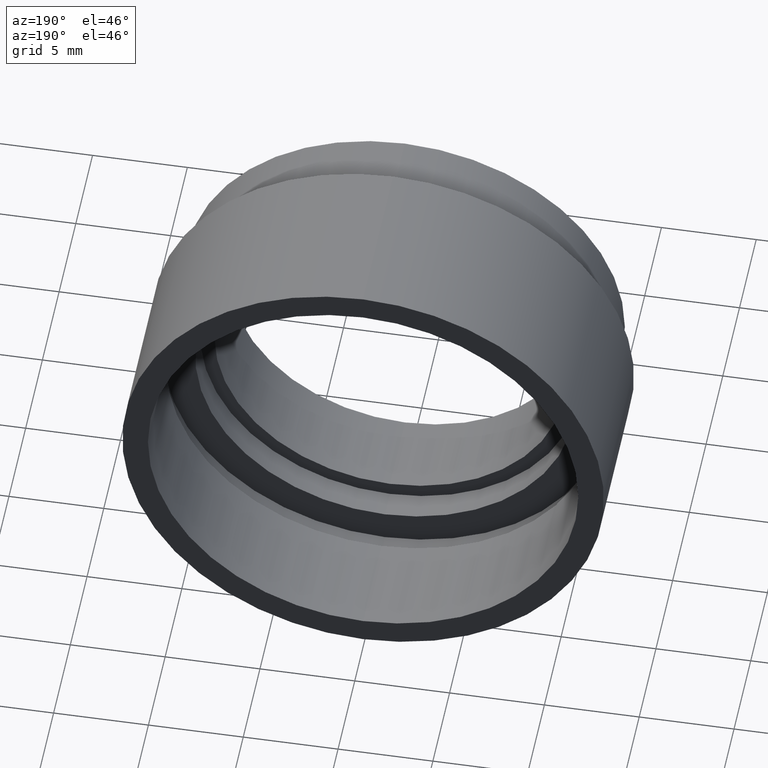
[diagram: clean part render]
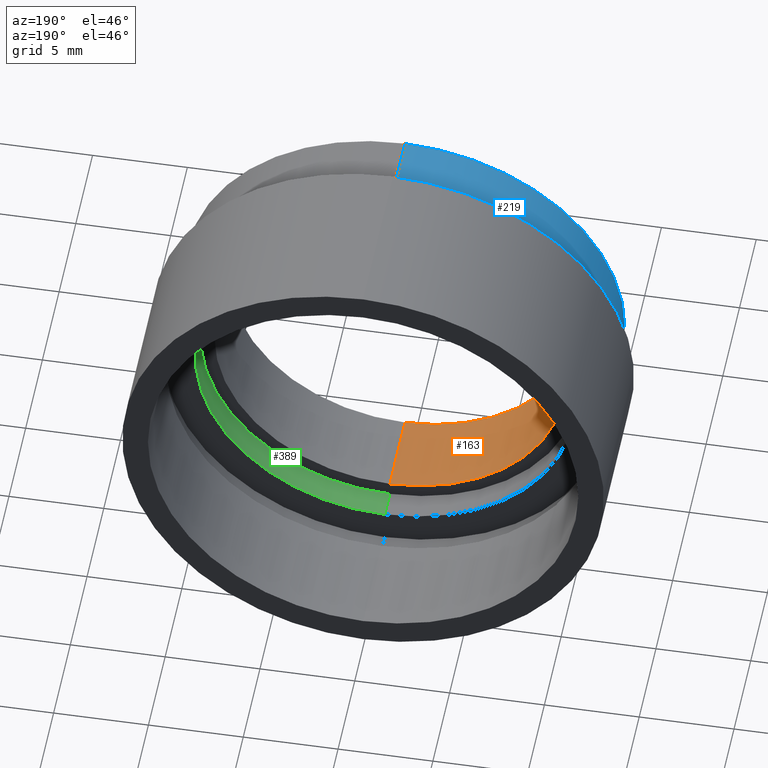
[diagram: same view with three faces highlighted in distinct colors, each labeled with its STEP entity id]
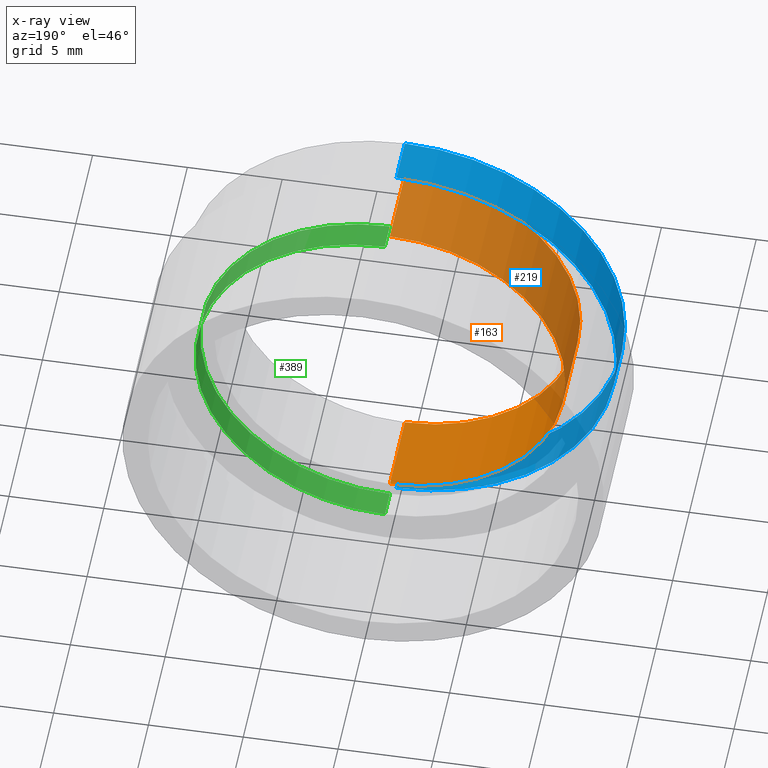
[diagram: x-ray of the same camera — body ghosted, the three highlighted faces saturated]
A machine part, auxiliary view with three faces highlighted in distinct colors.
The next image is the same camera in x-ray (body ghosted, the three faces saturated) — at least one of them is partly hidden behind the body in this view.
Their STEP definitions:

[orange] entity #163 — the highlighted cylindrical surface (partial cylindrical patch) has radius 9.25 mm, axis along (-0, -1, -0).
#1 = EDGE_CURVE ( 'NONE', #621, #558, #480, .T. ) ;
#7 = CARTESIAN_POINT ( 'NONE',  ( 1.132798289211301700E-015, 0.0000000000000000000, 9.250000000000000000 ) ) ;
#11 = CARTESIAN_POINT ( 'NONE',  ( 0.0000000000000000000, 4.500000000000000000, 0.0000000000000000000 ) ) ;
#14 = VERTEX_POINT ( 'NONE', #7 ) ;
#25 = DIRECTION ( 'NONE',  ( 0.0000000000000000000, 0.0000000000000000000, -1.000000000000000000 ) ) ;
#78 = CARTESIAN_POINT ( 'NONE',  ( 0.0000000000000000000, 0.0000000000000000000, -9.250000000000000000 ) ) ;
#88 = EDGE_CURVE ( 'NONE', #14, #558, #490, .T. ) ;
#92 = DIRECTION ( 'NONE',  ( -0.0000000000000000000, -1.000000000000000000, -0.0000000000000000000 ) ) ;
#145 = VERTEX_POINT ( 'NONE', #471 ) ;
#157 = LINE ( 'NONE', #266, #535 ) ;
#163 = ADVANCED_FACE ( 'NONE', ( #435 ), #614, .F. ) ;
#176 = AXIS2_PLACEMENT_3D ( 'NONE', #577, #301, #25 ) ;
#217 = ORIENTED_EDGE ( 'NONE', *, *, #511, .F. ) ;
#240 = DIRECTION ( 'NONE',  ( 0.0000000000000000000, 0.0000000000000000000, -1.000000000000000000 ) ) ;
#266 = CARTESIAN_POINT ( 'NONE',  ( 1.132798289211301700E-015, 0.0000000000000000000, 9.250000000000000000 ) ) ;
#290 = DIRECTION ( 'NONE',  ( -0.0000000000000000000, -1.000000000000000000, -0.0000000000000000000 ) ) ;
#301 = DIRECTION ( 'NONE',  ( -0.0000000000000000000, -1.000000000000000000, -0.0000000000000000000 ) ) ;
#332 = EDGE_CURVE ( 'NONE', #145, #14, #157, .T. ) ;
#334 = VECTOR ( 'NONE', #346, 1000.000000000000000 ) ;
#346 = DIRECTION ( 'NONE',  ( -0.0000000000000000000, -1.000000000000000000, -0.0000000000000000000 ) ) ;
#349 = CIRCLE ( 'NONE', #361, 9.250000000000000000 ) ;
#354 = CARTESIAN_POINT ( 'NONE',  ( 0.0000000000000000000, 0.0000000000000000000, 0.0000000000000000000 ) ) ;
#361 = AXIS2_PLACEMENT_3D ( 'NONE', #11, #290, #479 ) ;
#395 = ORIENTED_EDGE ( 'NONE', *, *, #332, .T. ) ;
#398 = CARTESIAN_POINT ( 'NONE',  ( 0.0000000000000000000, 0.0000000000000000000, -9.250000000000000000 ) ) ;
#435 = FACE_OUTER_BOUND ( 'NONE', #549, .T. ) ;
#471 = CARTESIAN_POINT ( 'NONE',  ( 1.132798289211301700E-015, 4.500000000000000000, 9.250000000000000000 ) ) ;
#479 = DIRECTION ( 'NONE',  ( 0.0000000000000000000, 0.0000000000000000000, -1.000000000000000000 ) ) ;
#480 = LINE ( 'NONE', #398, #334 ) ;
#490 = CIRCLE ( 'NONE', #522, 9.250000000000000000 ) ;
#511 = EDGE_CURVE ( 'NONE', #145, #621, #349, .T. ) ;
#522 = AXIS2_PLACEMENT_3D ( 'NONE', #354, #676, #240 ) ;
#535 = VECTOR ( 'NONE', #92, 1000.000000000000000 ) ;
#549 = EDGE_LOOP ( 'NONE', ( #217, #395, #649, #695 ) ) ;
#558 = VERTEX_POINT ( 'NONE', #78 ) ;
#577 = CARTESIAN_POINT ( 'NONE',  ( 0.0000000000000000000, 0.0000000000000000000, 0.0000000000000000000 ) ) ;
#588 = CARTESIAN_POINT ( 'NONE',  ( 0.0000000000000000000, 4.500000000000000000, -9.250000000000000000 ) ) ;
#614 = CYLINDRICAL_SURFACE ( 'NONE', #176, 9.250000000000000000 ) ;
#621 = VERTEX_POINT ( 'NONE', #588 ) ;
#649 = ORIENTED_EDGE ( 'NONE', *, *, #88, .T. ) ;
#676 = DIRECTION ( 'NONE',  ( -0.0000000000000000000, -1.000000000000000000, -0.0000000000000000000 ) ) ;
#695 = ORIENTED_EDGE ( 'NONE', *, *, #1, .F. ) ;

[blue] entity #219 — the highlighted cylindrical surface (partial cylindrical patch) has radius 11.6 mm, axis along (-0, -1, -0).
#3 = VECTOR ( 'NONE', #407, 1000.000000000000000 ) ;
#6 = CARTESIAN_POINT ( 'NONE',  ( 0.0000000000000000000, 0.0000000000000000000, -11.60000000000000000 ) ) ;
#13 = ORIENTED_EDGE ( 'NONE', *, *, #642, .F. ) ;
#16 = CARTESIAN_POINT ( 'NONE',  ( 0.0000000000000000000, 0.0000000000000000000, 0.0000000000000000000 ) ) ;
#98 = AXIS2_PLACEMENT_3D ( 'NONE', #16, #363, #584 ) ;
#103 = LINE ( 'NONE', #321, #382 ) ;
#141 = AXIS2_PLACEMENT_3D ( 'NONE', #604, #714, #274 ) ;
#158 = VERTEX_POINT ( 'NONE', #520 ) ;
#197 = DIRECTION ( 'NONE',  ( 0.0000000000000000000, 0.0000000000000000000, -1.000000000000000000 ) ) ;
#218 = ORIENTED_EDGE ( 'NONE', *, *, #348, .F. ) ;
#219 = ADVANCED_FACE ( 'NONE', ( #272 ), #243, .T. ) ;
#227 = ORIENTED_EDGE ( 'NONE', *, *, #380, .T. ) ;
#243 = CYLINDRICAL_SURFACE ( 'NONE', #586, 11.60000000000000000 ) ;
#272 = FACE_OUTER_BOUND ( 'NONE', #369, .T. ) ;
#274 = DIRECTION ( 'NONE',  ( 0.0000000000000000000, 0.0000000000000000000, -1.000000000000000000 ) ) ;
#321 = CARTESIAN_POINT ( 'NONE',  ( 1.420590287010929500E-015, 0.0000000000000000000, 11.60000000000000000 ) ) ;
#342 = CIRCLE ( 'NONE', #98, 11.60000000000000000 ) ;
#348 = EDGE_CURVE ( 'NONE', #580, #158, #103, .T. ) ;
#360 = CARTESIAN_POINT ( 'NONE',  ( 0.0000000000000000000, 2.500000000000000000, -11.60000000000000000 ) ) ;
#363 = DIRECTION ( 'NONE',  ( -0.0000000000000000000, -1.000000000000000000, -0.0000000000000000000 ) ) ;
#369 = EDGE_LOOP ( 'NONE', ( #218, #227, #658, #13 ) ) ;
#380 = EDGE_CURVE ( 'NONE', #580, #573, #452, .T. ) ;
#382 = VECTOR ( 'NONE', #426, 1000.000000000000000 ) ;
#407 = DIRECTION ( 'NONE',  ( -0.0000000000000000000, -1.000000000000000000, -0.0000000000000000000 ) ) ;
#412 = CARTESIAN_POINT ( 'NONE',  ( 1.420590287010929500E-015, 2.500000000000000000, 11.60000000000000000 ) ) ;
#426 = DIRECTION ( 'NONE',  ( -0.0000000000000000000, -1.000000000000000000, -0.0000000000000000000 ) ) ;
#452 = CIRCLE ( 'NONE', #141, 11.60000000000000000 ) ;
#464 = EDGE_CURVE ( 'NONE', #573, #704, #634, .T. ) ;
#520 = CARTESIAN_POINT ( 'NONE',  ( 1.420590287010929500E-015, 0.0000000000000000000, 11.60000000000000000 ) ) ;
#529 = DIRECTION ( 'NONE',  ( -0.0000000000000000000, -1.000000000000000000, -0.0000000000000000000 ) ) ;
#573 = VERTEX_POINT ( 'NONE', #360 ) ;
#580 = VERTEX_POINT ( 'NONE', #412 ) ;
#584 = DIRECTION ( 'NONE',  ( 0.0000000000000000000, 0.0000000000000000000, -1.000000000000000000 ) ) ;
#586 = AXIS2_PLACEMENT_3D ( 'NONE', #630, #529, #197 ) ;
#604 = CARTESIAN_POINT ( 'NONE',  ( 0.0000000000000000000, 2.500000000000000000, 0.0000000000000000000 ) ) ;
#630 = CARTESIAN_POINT ( 'NONE',  ( 0.0000000000000000000, 0.0000000000000000000, 0.0000000000000000000 ) ) ;
#634 = LINE ( 'NONE', #6, #3 ) ;
#642 = EDGE_CURVE ( 'NONE', #158, #704, #342, .T. ) ;
#658 = ORIENTED_EDGE ( 'NONE', *, *, #464, .T. ) ;
#702 = CARTESIAN_POINT ( 'NONE',  ( 0.0000000000000000000, 0.0000000000000000000, -11.60000000000000000 ) ) ;
#704 = VERTEX_POINT ( 'NONE', #702 ) ;
#714 = DIRECTION ( 'NONE',  ( -0.0000000000000000000, -1.000000000000000000, -0.0000000000000000000 ) ) ;

[green] entity #389 — the highlighted cylindrical surface (partial cylindrical patch) has radius 10 mm, axis along (-0, -1, -0).
#60 = CARTESIAN_POINT ( 'NONE',  ( 0.0000000000000000000, 6.000000000000000000, -9.999999999999998200 ) ) ;
#72 = VERTEX_POINT ( 'NONE', #60 ) ;
#84 = ORIENTED_EDGE ( 'NONE', *, *, #720, .T. ) ;
#134 = VECTOR ( 'NONE', #541, 1000.000000000000000 ) ;
#138 = DIRECTION ( 'NONE',  ( -0.0000000000000000000, -1.000000000000000000, -0.0000000000000000000 ) ) ;
#159 = VERTEX_POINT ( 'NONE', #474 ) ;
#164 = DIRECTION ( 'NONE',  ( 0.0000000000000000000, 0.0000000000000000000, -1.000000000000000000 ) ) ;
#190 = EDGE_CURVE ( 'NONE', #318, #159, #600, .T. ) ;
#210 = CARTESIAN_POINT ( 'NONE',  ( 1.224646799147353100E-015, 6.000000000000000000, 9.999999999999998200 ) ) ;
#241 = CARTESIAN_POINT ( 'NONE',  ( 0.0000000000000000000, 4.500000000000000900, -9.999999999999998200 ) ) ;
#257 = CARTESIAN_POINT ( 'NONE',  ( 0.0000000000000000000, 0.0000000000000000000, -9.999999999999998200 ) ) ;
#263 = ORIENTED_EDGE ( 'NONE', *, *, #685, .F. ) ;
#278 = AXIS2_PLACEMENT_3D ( 'NONE', #717, #498, #164 ) ;
#282 = EDGE_LOOP ( 'NONE', ( #429, #263, #564, #84 ) ) ;
#287 = LINE ( 'NONE', #257, #134 ) ;
#318 = VERTEX_POINT ( 'NONE', #210 ) ;
#322 = CARTESIAN_POINT ( 'NONE',  ( 0.0000000000000000000, 6.000000000000000000, 0.0000000000000000000 ) ) ;
#345 = EDGE_CURVE ( 'NONE', #72, #465, #287, .T. ) ;
#356 = VECTOR ( 'NONE', #138, 1000.000000000000000 ) ;
#373 = CARTESIAN_POINT ( 'NONE',  ( 0.0000000000000000000, 4.500000000000000900, 0.0000000000000000000 ) ) ;
#389 = ADVANCED_FACE ( 'NONE', ( #503 ), #545, .F. ) ;
#420 = AXIS2_PLACEMENT_3D ( 'NONE', #322, #592, #484 ) ;
#429 = ORIENTED_EDGE ( 'NONE', *, *, #190, .F. ) ;
#450 = AXIS2_PLACEMENT_3D ( 'NONE', #373, #538, #647 ) ;
#460 = CIRCLE ( 'NONE', #420, 9.999999999999998200 ) ;
#465 = VERTEX_POINT ( 'NONE', #241 ) ;
#474 = CARTESIAN_POINT ( 'NONE',  ( 1.224646799147353100E-015, 4.500000000000000900, 9.999999999999998200 ) ) ;
#484 = DIRECTION ( 'NONE',  ( 0.0000000000000000000, 0.0000000000000000000, -1.000000000000000000 ) ) ;
#498 = DIRECTION ( 'NONE',  ( -0.0000000000000000000, -1.000000000000000000, -0.0000000000000000000 ) ) ;
#503 = FACE_OUTER_BOUND ( 'NONE', #282, .T. ) ;
#538 = DIRECTION ( 'NONE',  ( -0.0000000000000000000, -1.000000000000000000, -0.0000000000000000000 ) ) ;
#541 = DIRECTION ( 'NONE',  ( -0.0000000000000000000, -1.000000000000000000, -0.0000000000000000000 ) ) ;
#545 = CYLINDRICAL_SURFACE ( 'NONE', #278, 9.999999999999998200 ) ;
#564 = ORIENTED_EDGE ( 'NONE', *, *, #345, .T. ) ;
#578 = CIRCLE ( 'NONE', #450, 9.999999999999998200 ) ;
#592 = DIRECTION ( 'NONE',  ( -0.0000000000000000000, -1.000000000000000000, -0.0000000000000000000 ) ) ;
#600 = LINE ( 'NONE', #692, #356 ) ;
#647 = DIRECTION ( 'NONE',  ( 0.0000000000000000000, 0.0000000000000000000, -1.000000000000000000 ) ) ;
#685 = EDGE_CURVE ( 'NONE', #72, #318, #460, .T. ) ;
#692 = CARTESIAN_POINT ( 'NONE',  ( 1.224646799147353100E-015, 0.0000000000000000000, 9.999999999999998200 ) ) ;
#717 = CARTESIAN_POINT ( 'NONE',  ( 0.0000000000000000000, 0.0000000000000000000, 0.0000000000000000000 ) ) ;
#720 = EDGE_CURVE ( 'NONE', #465, #159, #578, .T. ) ;